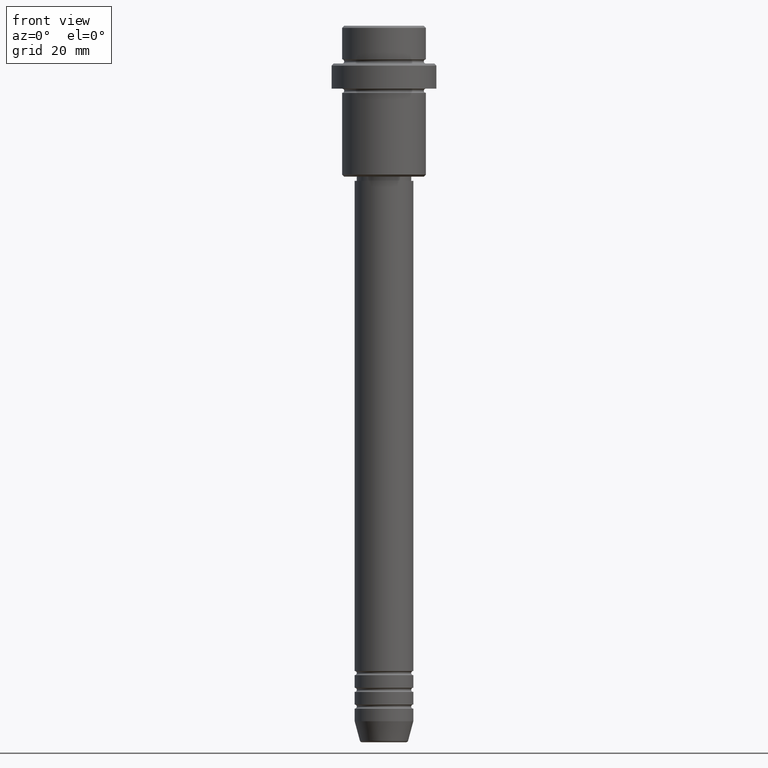
[diagram: clean part render]
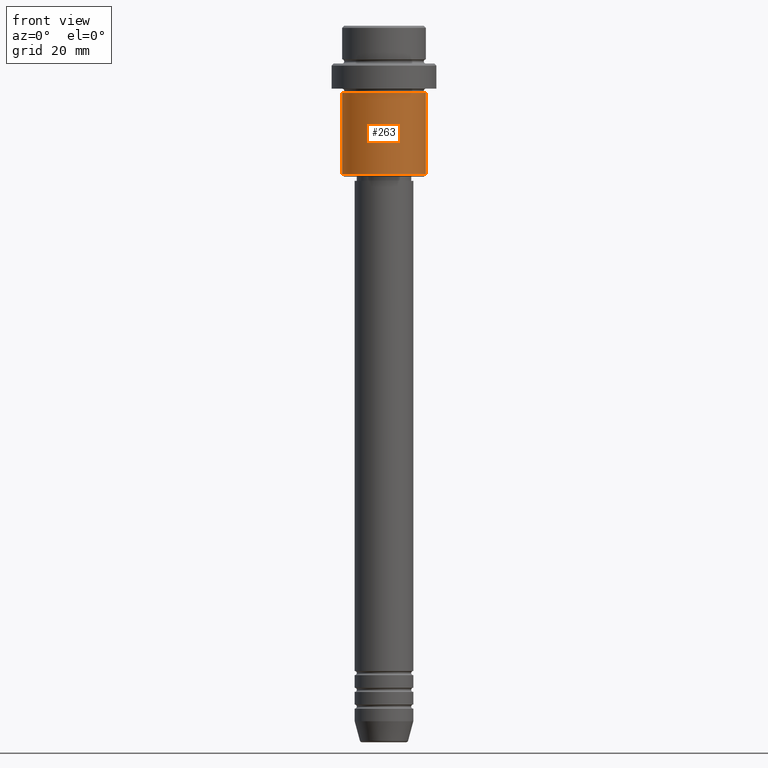
[diagram: same view with one face highlighted and labeled with its STEP entity id]
A machine part, front view. The second image highlights one B-rep face of the part: STEP entity #263.
In plain terms, the highlighted cylindrical surface (partial cylindrical patch) has radius 10 mm, axis along (-0, -0, 1).
Its self-contained STEP definition (entity closure, byte-faithful):
#28 = ORIENTED_EDGE ( 'NONE', *, *, #743, .F. ) ;
#39 = CARTESIAN_POINT ( 'NONE',  ( 0.000000000000000000, 0.000000000000000000, -35.49999999999997158 ) ) ;
#49 = DIRECTION ( 'NONE',  ( -0.000000000000000000, -0.000000000000000000, 1.000000000000000000 ) ) ;
#72 = CARTESIAN_POINT ( 'NONE',  ( -10.00000000000000000, 1.224646799147353256E-15, -35.49999999999997158 ) ) ;
#78 = CARTESIAN_POINT ( 'NONE',  ( 10.00000000000000000, 0.000000000000000000, 0.000000000000000000 ) ) ;
#144 = DIRECTION ( 'NONE',  ( -1.000000000000000000, 0.000000000000000000, 0.000000000000000000 ) ) ;
#148 = ORIENTED_EDGE ( 'NONE', *, *, #428, .T. ) ;
#156 = AXIS2_PLACEMENT_3D ( 'NONE', #463, #1025, #1006 ) ;
#190 = EDGE_CURVE ( 'NONE', #568, #883, #218, .T. ) ;
#218 = CIRCLE ( 'NONE', #156, 10.00000000000000000 ) ;
#259 = DIRECTION ( 'NONE',  ( -0.000000000000000000, -0.000000000000000000, 1.000000000000000000 ) ) ;
#263 = ADVANCED_FACE ( 'NONE', ( #1343 ), #369, .T. ) ;
#280 = VERTEX_POINT ( 'NONE', #72 ) ;
#305 = CARTESIAN_POINT ( 'NONE',  ( 10.00000000000000000, 0.000000000000000000, -16.00000000000000000 ) ) ;
#369 = CYLINDRICAL_SURFACE ( 'NONE', #1383, 10.00000000000000000 ) ;
#404 = VECTOR ( 'NONE', #523, 1000.000000000000000 ) ;
#428 = EDGE_CURVE ( 'NONE', #864, #883, #1286, .T. ) ;
#463 = CARTESIAN_POINT ( 'NONE',  ( 0.000000000000000000, 0.000000000000000000, -16.00000000000000000 ) ) ;
#518 = ORIENTED_EDGE ( 'NONE', *, *, #190, .F. ) ;
#523 = DIRECTION ( 'NONE',  ( -0.000000000000000000, -0.000000000000000000, 1.000000000000000000 ) ) ;
#532 = ORIENTED_EDGE ( 'NONE', *, *, #759, .T. ) ;
#568 = VERTEX_POINT ( 'NONE', #991 ) ;
#591 = DIRECTION ( 'NONE',  ( -0.000000000000000000, -0.000000000000000000, 1.000000000000000000 ) ) ;
#655 = AXIS2_PLACEMENT_3D ( 'NONE', #39, #591, #144 ) ;
#699 = DIRECTION ( 'NONE',  ( 1.000000000000000000, 0.000000000000000000, 0.000000000000000000 ) ) ;
#743 = EDGE_CURVE ( 'NONE', #280, #568, #944, .T. ) ;
#759 = EDGE_CURVE ( 'NONE', #280, #864, #855, .T. ) ;
#855 = CIRCLE ( 'NONE', #655, 10.00000000000000000 ) ;
#864 = VERTEX_POINT ( 'NONE', #1065 ) ;
#883 = VERTEX_POINT ( 'NONE', #305 ) ;
#944 = LINE ( 'NONE', #1353, #1296 ) ;
#991 = CARTESIAN_POINT ( 'NONE',  ( -10.00000000000000000, 1.224646799147353256E-15, -16.00000000000000000 ) ) ;
#1006 = DIRECTION ( 'NONE',  ( 1.000000000000000000, 0.000000000000000000, 0.000000000000000000 ) ) ;
#1025 = DIRECTION ( 'NONE',  ( -0.000000000000000000, -0.000000000000000000, 1.000000000000000000 ) ) ;
#1065 = CARTESIAN_POINT ( 'NONE',  ( 10.00000000000000000, 0.000000000000000000, -35.49999999999997158 ) ) ;
#1092 = EDGE_LOOP ( 'NONE', ( #28, #532, #148, #518 ) ) ;
#1244 = CARTESIAN_POINT ( 'NONE',  ( 0.000000000000000000, 0.000000000000000000, 0.000000000000000000 ) ) ;
#1286 = LINE ( 'NONE', #78, #404 ) ;
#1296 = VECTOR ( 'NONE', #49, 1000.000000000000000 ) ;
#1343 = FACE_OUTER_BOUND ( 'NONE', #1092, .T. ) ;
#1353 = CARTESIAN_POINT ( 'NONE',  ( -10.00000000000000000, 1.224646799147353256E-15, 0.000000000000000000 ) ) ;
#1383 = AXIS2_PLACEMENT_3D ( 'NONE', #1244, #259, #699 ) ;